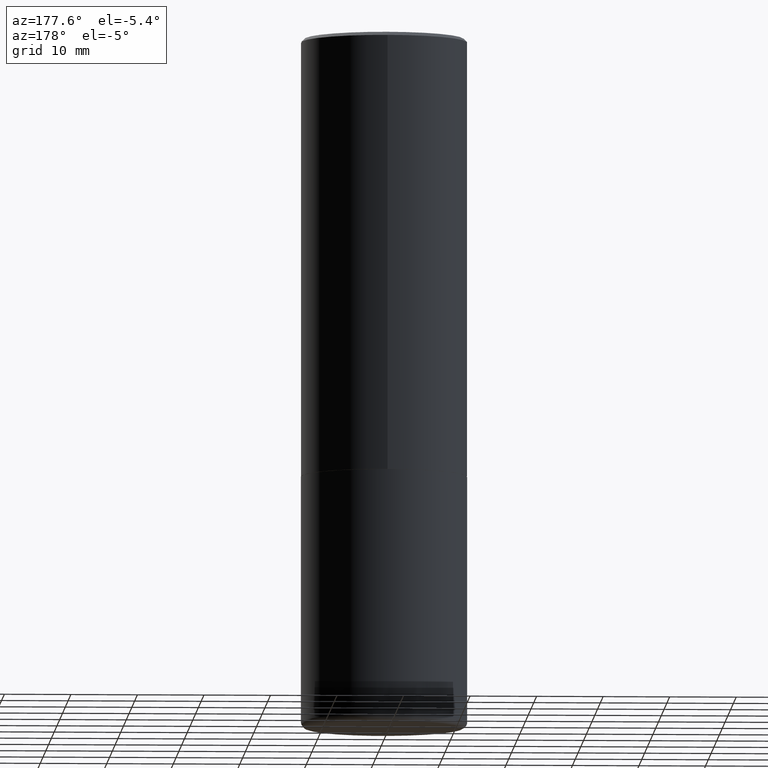
[diagram: clean part render]
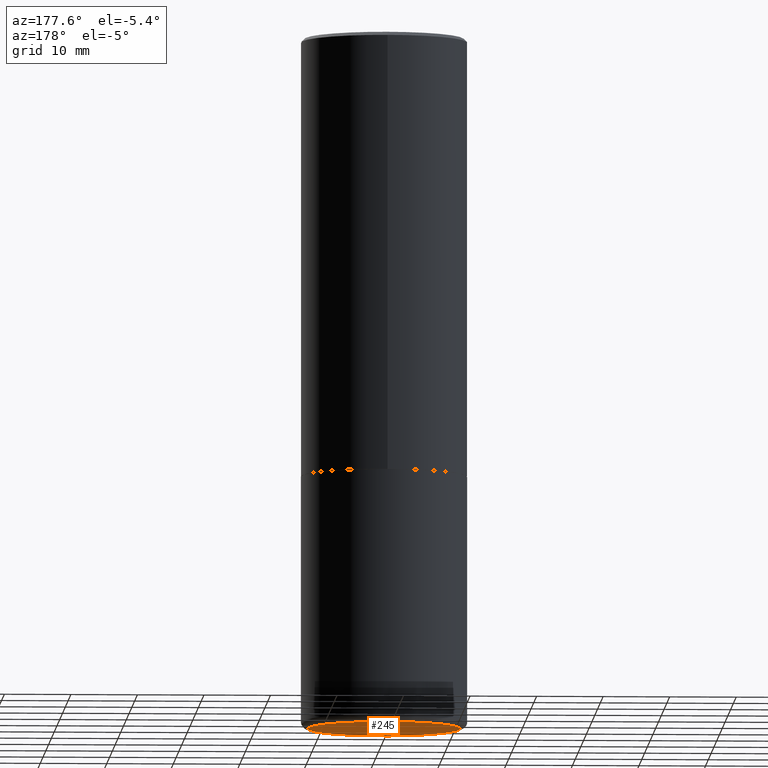
[diagram: same view with one face highlighted and labeled with its STEP entity id]
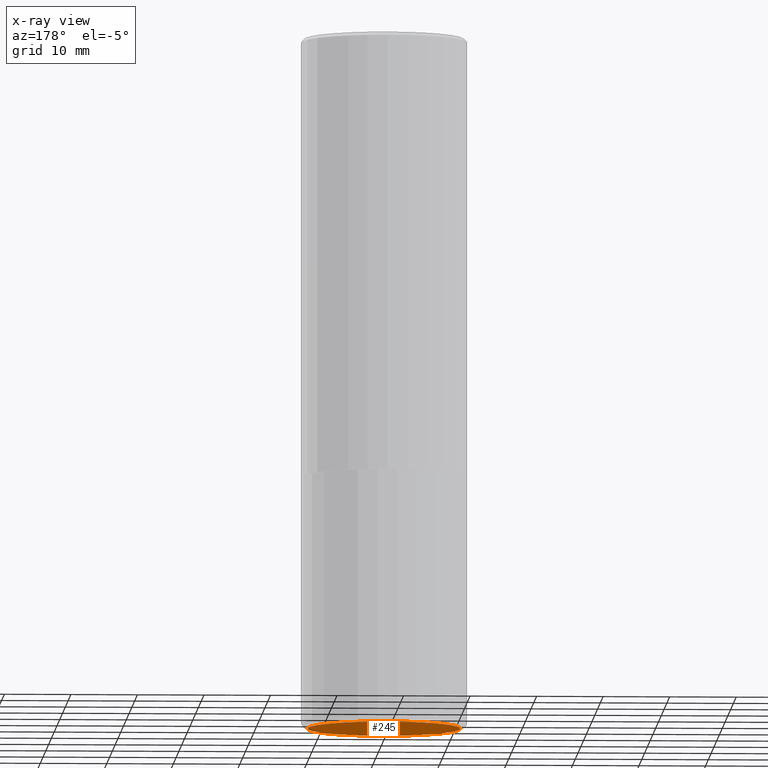
[diagram: x-ray of the same camera — body ghosted, the highlighted face saturated]
A machine part, auxiliary view. The second image highlights one B-rep face of the part: STEP entity #245.
The next image is the same camera in x-ray: the body ghosted, the highlighted face saturated — about 0% of this face is hidden behind the body in this view.
In plain terms, the highlighted planar face has unit normal (0, -0, -1).
Its self-contained STEP definition (entity closure, byte-faithful):
#2 = VERTEX_POINT ( 'NONE', #206 ) ;
#6 = CARTESIAN_POINT ( 'NONE',  ( 1.001297202692504327E-28, -1.429587034189326465E-14, -4.094500000000000917 ) ) ;
#48 = EDGE_CURVE ( 'NONE', #2, #412, #313, .T. ) ;
#51 = ORIENTED_EDGE ( 'NONE', *, *, #48, .F. ) ;
#71 = DIRECTION ( 'NONE',  ( -2.445468806185136597E-29, 3.491481338843145583E-15, 1.000000000000000000 ) ) ;
#83 = AXIS2_PLACEMENT_3D ( 'NONE', #6, #71, #265 ) ;
#137 = CIRCLE ( 'NONE', #377, 0.4527499999999999858 ) ;
#147 = EDGE_CURVE ( 'NONE', #412, #2, #137, .T. ) ;
#172 = CARTESIAN_POINT ( 'NONE',  ( 0.4527499999999999858, -1.745740669421572042E-14, -4.094500000000000917 ) ) ;
#206 = CARTESIAN_POINT ( 'NONE',  ( -0.4527499999999999858, -1.087012900441945672E-14, -4.094500000000000917 ) ) ;
#209 = CARTESIAN_POINT ( 'NONE',  ( 1.001297202692504327E-28, -1.429587034189326465E-14, -4.094500000000000917 ) ) ;
#221 = PLANE ( 'NONE',  #404 ) ;
#240 = CARTESIAN_POINT ( 'NONE',  ( 6.562578236870009420E-29, -1.923703063347065825E-14, -4.094500000000000917 ) ) ;
#245 = ADVANCED_FACE ( 'NONE', ( #311 ), #221, .T. ) ;
#265 = DIRECTION ( 'NONE',  ( 1.000000000000000000, -6.982962677686265133E-15, 0.000000000000000000 ) ) ;
#279 = DIRECTION ( 'NONE',  ( 2.438088387897960049E-29, -3.491481338843145188E-15, -1.000000000000000000 ) ) ;
#293 = DIRECTION ( 'NONE',  ( 1.000000000000000000, -6.982962677686265133E-15, 0.000000000000000000 ) ) ;
#311 = FACE_OUTER_BOUND ( 'NONE', #343, .T. ) ;
#313 = CIRCLE ( 'NONE', #83, 0.4527499999999999858 ) ;
#343 = EDGE_LOOP ( 'NONE', ( #358, #51 ) ) ;
#358 = ORIENTED_EDGE ( 'NONE', *, *, #147, .F. ) ;
#373 = DIRECTION ( 'NONE',  ( -2.445468806185136597E-29, 3.491481338843145583E-15, 1.000000000000000000 ) ) ;
#377 = AXIS2_PLACEMENT_3D ( 'NONE', #209, #373, #293 ) ;
#404 = AXIS2_PLACEMENT_3D ( 'NONE', #240, #279, #409 ) ;
#409 = DIRECTION ( 'NONE',  ( -1.000000000000000000, 6.982962677686265922E-15, -4.876176775795935793E-29 ) ) ;
#412 = VERTEX_POINT ( 'NONE', #172 ) ;